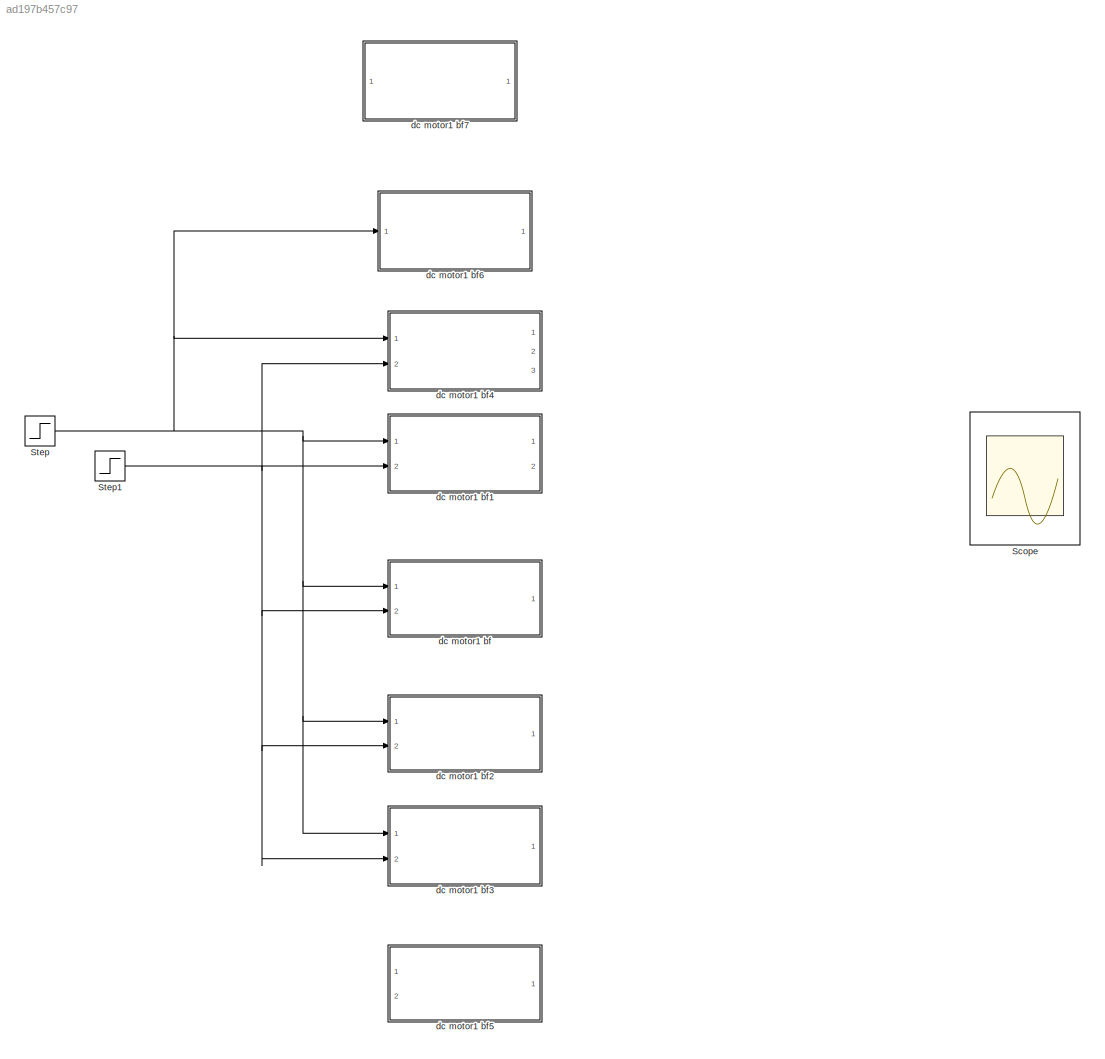
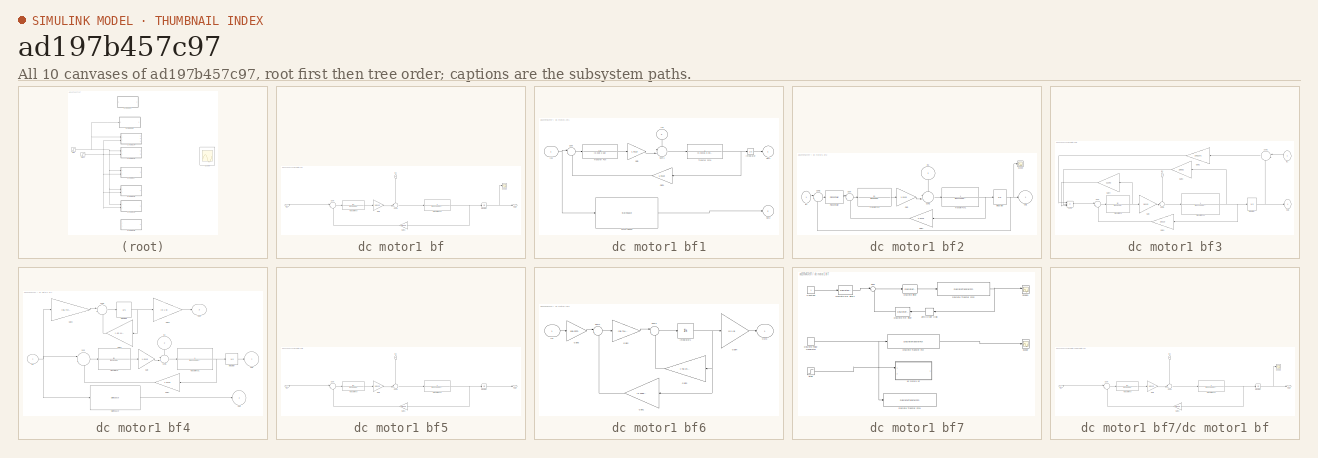
[diagram: thumbnail index - all 10 canvases of the model, root first then tree order]
MODEL slx_ad197b457c97
KIND model
CONFIG AbsTol = auto
CONFIG EnableMultiTasking = off
CONFIG FixedStep = 0.0001
CONFIG MaxStep = auto
CONFIG MinStep = auto
CONFIG RelTol = 1e-3
CONFIG SampleTimeConstraint = Unconstrained
CONFIG SolverName = FixedStepAuto
CONFIG StartTime = 0.0
CONFIG StopTime = 2
BLOCK [Scope] Scope
  Floating = off
  NumInputPorts = 2
  Ports = [2]
  ScopeSpecificationString = Simulink.scopes.TimeScopeBlockCfg('CurrentConfiguration', extmgr.ConfigurationSet(extmgr.Configuration('Core','General UI',true),extmgr.Configuration('Core','Source UI',true),extmgr.Configuration('Sources','WiredSimulink',true,'DataLoggingLimitDataPoints',true,'DataLoggingMaxPoints','50000000'),extmgr.Configuration('Visuals','Time Domain',true,'SerializedDisplays',{struct('MinYLimReal','-2503.0283...<+1631ch>
BLOCK [Step] Step
  After = 100
  SampleTime = 0
  Time = 0
BLOCK [Step] Step1
  After = 0
  SampleTime = 0
  Time = 0
BLOCK [SubSystem] dc motor1 bf
  Ports = [2, 1]
  RequestExecContextInheritance = off
BLOCK [Gain] dc motor1 bf/Gain
  Gain = 1.0113
BLOCK [Gain] dc motor1 bf/Gain1
  Gain = 1.0113
BLOCK [Inport] dc motor1 bf/In1
BLOCK [Inport] dc motor1 bf/In2
  NameLocation = left
  Port = 2
BLOCK [Integrator] dc motor1 bf/Integrator
  InitialCondition = 3
  Ports = [1, 1]
BLOCK [Outport] dc motor1 bf/Out1
BLOCK [Scope] dc motor1 bf/Scope
  Floating = off
  NumInputPorts = 1
  Ports = [1]
  ScopeSpecificationString = Simulink.scopes.TimeScopeBlockCfg('CurrentConfiguration', extmgr.ConfigurationSet(extmgr.Configuration('Core','General UI',true),extmgr.Configuration('Core','Source UI',true),extmgr.Configuration('Sources','WiredSimulink',true,'DataLoggingVariableName','ScopeData7'),extmgr.Configuration('Visuals','Time Domain',true,'SerializedDisplays',{struct('MinYLimReal','-20.8564','MaxYLimReal','217.70757','YL...<+1377ch>
BLOCK [Sum] dc motor1 bf/Sum
  Inputs = |+-
  Ports = [2, 1]
BLOCK [Sum] dc motor1 bf/Sum1
  Inputs = -+|
  Ports = [2, 1]
BLOCK [TransferFcn] dc motor1 bf/Transfer Fcn
  Denominator = [0.028 2.58]
BLOCK [TransferFcn] dc motor1 bf/Transfer Fcn1
  Denominator = [0.02215 0.002953]
  Numerator = 1
BLOCK [SubSystem] dc motor1 bf1
  Ports = [2, 2]
  RequestExecContextInheritance = off
BLOCK [Gain] dc motor1 bf1/Gain
  Gain = 1.0113
BLOCK [Gain] dc motor1 bf1/Gain1
  Gain = 1.0113
BLOCK [Inport] dc motor1 bf1/In1
BLOCK [Inport] dc motor1 bf1/In2
  NameLocation = left
  Port = 2
BLOCK [Integrator] dc motor1 bf1/Integrator
  Ports = [1, 1]
BLOCK [Outport] dc motor1 bf1/Out1
BLOCK [Outport] dc motor1 bf1/Out2
  Port = 2
BLOCK [StateSpace] dc motor1 bf1/State-Space
  A = [-92.1429 0 -36.1179\n ;0 0 1.0000;\n45.6569   0   -0.1333]
  B = [35.7143;0;0]
  C = [0 1 0]
  D = 0
  InitialCondition = 0
  Ports = [1, 1]
BLOCK [Sum] dc motor1 bf1/Sum
  Inputs = |+-
  Ports = [2, 1]
BLOCK [Sum] dc motor1 bf1/Sum1
  Inputs = -+|
  Ports = [2, 1]
BLOCK [TransferFcn] dc motor1 bf1/Transfer Fcn
  Denominator = [0.028 2.58]
BLOCK [TransferFcn] dc motor1 bf1/Transfer Fcn1
  Denominator = [0.02215 0.002953]
  Numerator = 1
BLOCK [SubSystem] dc motor1 bf2
  Ports = [2, 1]
  RequestExecContextInheritance = off
BLOCK [Gain] dc motor1 bf2/Gain
  Gain = 1.0113
BLOCK [Gain] dc motor1 bf2/Gain1
  Gain = 1.0113
BLOCK [Inport] dc motor1 bf2/In1
BLOCK [Inport] dc motor1 bf2/In2
  NameLocation = left
  Port = 2
BLOCK [Integrator] dc motor1 bf2/Integrator
  InitialCondition = 3
  Ports = [1, 1]
BLOCK [Outport] dc motor1 bf2/Out1
BLOCK [Reference] dc motor1 bf2/PID Controller  REF=pid_lib/PID Controller
  Ports = [1, 1]
  SourceBlock = pid_lib/PID Controller
  SourceProductBaseCode = SL
  SourceType = PID 1dof
BLOCK [Scope] dc motor1 bf2/Scope
  Floating = off
  NumInputPorts = 1
  Ports = [1]
  ScopeSpecificationString = Simulink.scopes.TimeScopeBlockCfg('CurrentConfiguration', extmgr.ConfigurationSet(extmgr.Configuration('Core','General UI',true),extmgr.Configuration('Core','Source UI',true),extmgr.Configuration('Sources','WiredSimulink',true,'DataLoggingVariableName','ScopeData8'),extmgr.Configuration('Visuals','Time Domain',true,'SerializedDisplays',{struct('MinYLimReal','-7.51695','MaxYLimReal','97.65251','YLa...<+1373ch>
BLOCK [Sum] dc motor1 bf2/Sum
  Inputs = |+-
  Ports = [2, 1]
BLOCK [Sum] dc motor1 bf2/Sum1
  Inputs = -+|
  Ports = [2, 1]
BLOCK [Sum] dc motor1 bf2/Sum2
  Inputs = |+-
  Ports = [2, 1]
BLOCK [TransferFcn] dc motor1 bf2/Transfer Fcn
  Denominator = [0.028 2.58]
BLOCK [TransferFcn] dc motor1 bf2/Transfer Fcn1
  Denominator = [0.02215 0.002953]
  Numerator = 1
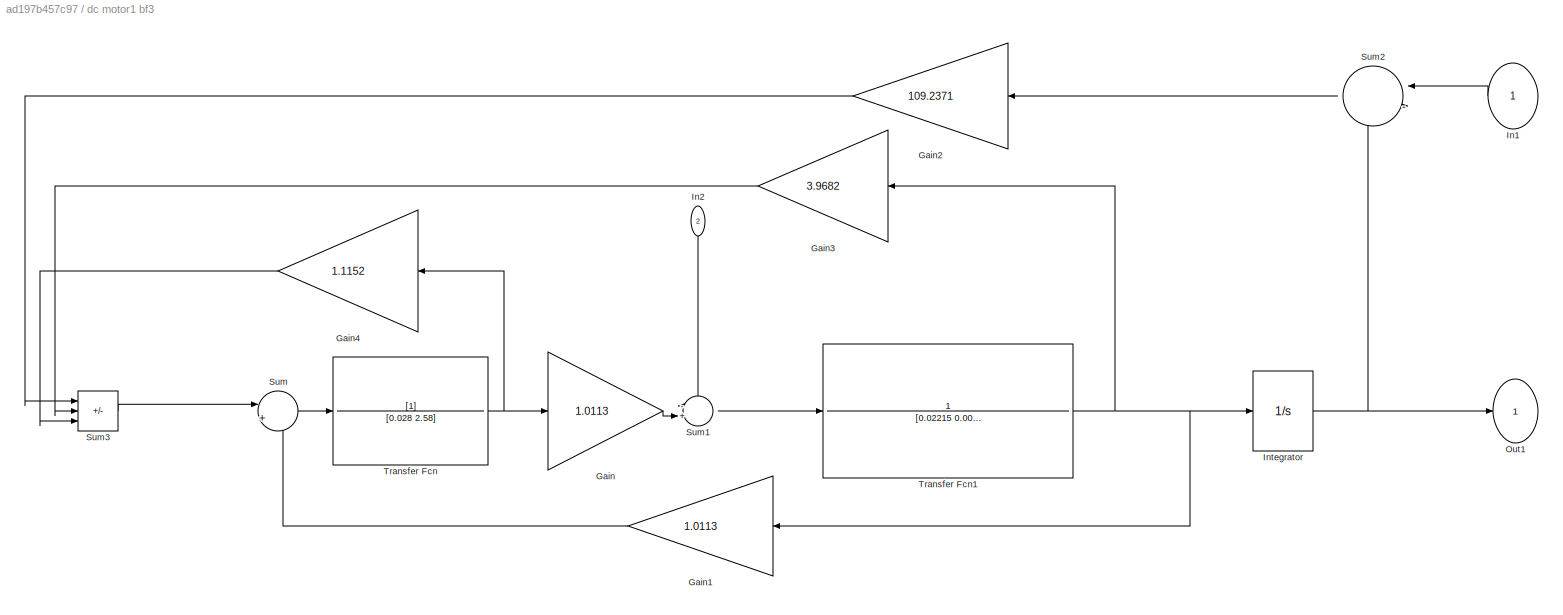
BLOCK [SubSystem] dc motor1 bf3
  Ports = [2, 1]
  RequestExecContextInheritance = off
BLOCK [Gain] dc motor1 bf3/Gain
  Gain = 1.0113
BLOCK [Gain] dc motor1 bf3/Gain1
  Gain = 1.0113
BLOCK [Gain] dc motor1 bf3/Gain2
  Gain = 109.2371
BLOCK [Gain] dc motor1 bf3/Gain3
  Gain = 3.9682
BLOCK [Gain] dc motor1 bf3/Gain4
  Gain = 1.1152
BLOCK [Inport] dc motor1 bf3/In1
  NameLocation = top
BLOCK [Inport] dc motor1 bf3/In2
  NameLocation = left
  Port = 2
BLOCK [Integrator] dc motor1 bf3/Integrator
  InitialCondition = 3
  Ports = [1, 1]
BLOCK [Outport] dc motor1 bf3/Out1
BLOCK [Sum] dc motor1 bf3/Sum
  Inputs = |+-
  Ports = [2, 1]
BLOCK [Sum] dc motor1 bf3/Sum1
  Inputs = -+|
  Ports = [2, 1]
BLOCK [Sum] dc motor1 bf3/Sum2
  Inputs = |-+
  NameLocation = top
  Ports = [2, 1]
BLOCK [Sum] dc motor1 bf3/Sum3
  IconShape = rectangular
  Inputs = |---
  Ports = [3, 1]
BLOCK [TransferFcn] dc motor1 bf3/Transfer Fcn
  Denominator = [0.028 2.58]
BLOCK [TransferFcn] dc motor1 bf3/Transfer Fcn1
  Denominator = [0.02215 0.002953]
  Numerator = 1
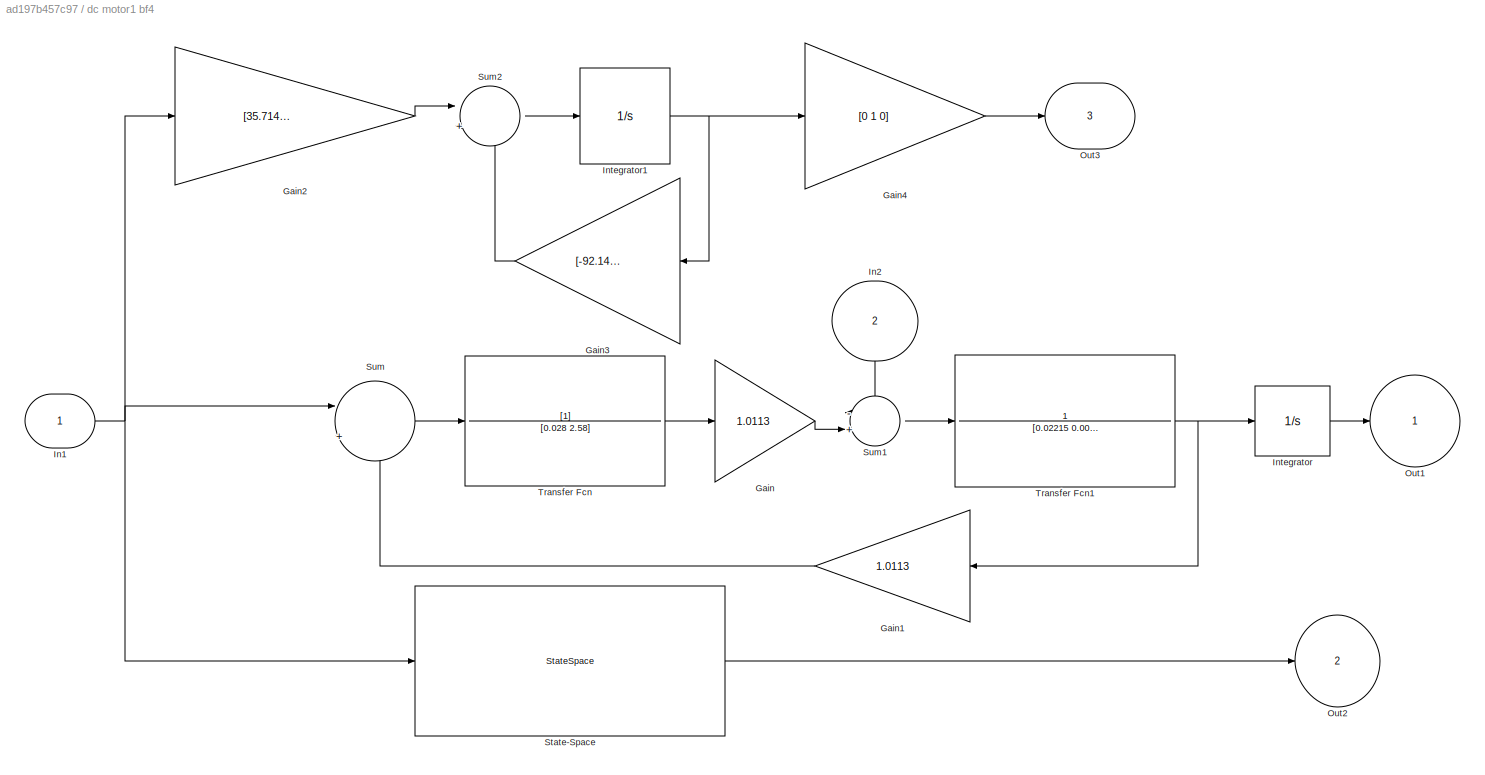
BLOCK [SubSystem] dc motor1 bf4
  Ports = [2, 3]
  RequestExecContextInheritance = off
BLOCK [Gain] dc motor1 bf4/Gain
  Gain = 1.0113
BLOCK [Gain] dc motor1 bf4/Gain1
  Gain = 1.0113
BLOCK [Gain] dc motor1 bf4/Gain2
  Gain = [35.7143;0;0]
  Multiplication = Matrix(K*u)
BLOCK [Gain] dc motor1 bf4/Gain3
  Gain = [-92.1429 0 -36.1179\n ;0 0 1.0000;\n45.6569   0   -0.1333]
  Multiplication = Matrix(K*u)
BLOCK [Gain] dc motor1 bf4/Gain4
  Gain = [0 1 0]
  Multiplication = Matrix(K*u)
BLOCK [Inport] dc motor1 bf4/In1
BLOCK [Inport] dc motor1 bf4/In2
  NameLocation = left
  Port = 2
BLOCK [Integrator] dc motor1 bf4/Integrator
  Ports = [1, 1]
BLOCK [Integrator] dc motor1 bf4/Integrator1
  Ports = [1, 1]
BLOCK [Outport] dc motor1 bf4/Out1
BLOCK [Outport] dc motor1 bf4/Out2
  Port = 2
BLOCK [Outport] dc motor1 bf4/Out3
  Port = 3
BLOCK [StateSpace] dc motor1 bf4/State-Space
  A = [-92.1429 0 -36.1179\n ;0 0 1.0000;\n45.6569   0   -0.1333]
  B = [35.7143;0;0]
  C = [0 1 0]
  D = 0
  InitialCondition = 0
  Ports = [1, 1]
BLOCK [Sum] dc motor1 bf4/Sum
  Inputs = |+-
  Ports = [2, 1]
BLOCK [Sum] dc motor1 bf4/Sum1
  Inputs = -+|
  Ports = [2, 1]
BLOCK [Sum] dc motor1 bf4/Sum2
  Inputs = |++
  Ports = [2, 1]
BLOCK [TransferFcn] dc motor1 bf4/Transfer Fcn
  Denominator = [0.028 2.58]
BLOCK [TransferFcn] dc motor1 bf4/Transfer Fcn1
  Denominator = [0.02215 0.002953]
  Numerator = 1
BLOCK [SubSystem] dc motor1 bf5
  Ports = [2, 1]
  RequestExecContextInheritance = off
BLOCK [Gain] dc motor1 bf5/Gain
  Gain = 1.0113
BLOCK [Gain] dc motor1 bf5/Gain1
  Gain = 1.0113
BLOCK [Inport] dc motor1 bf5/In1
BLOCK [Inport] dc motor1 bf5/In2
  NameLocation = left
  Port = 2
BLOCK [Integrator] dc motor1 bf5/Integrator
  InitialCondition = 3
  Ports = [1, 1]
BLOCK [Outport] dc motor1 bf5/Out1
BLOCK [Sum] dc motor1 bf5/Sum
  Inputs = |+-
  Ports = [2, 1]
BLOCK [Sum] dc motor1 bf5/Sum1
  Inputs = -+|
  Ports = [2, 1]
BLOCK [TransferFcn] dc motor1 bf5/Transfer Fcn
  Denominator = [0.028 2.58]
BLOCK [TransferFcn] dc motor1 bf5/Transfer Fcn1
  Denominator = [0.02215 0.002953]
  Numerator = 1
BLOCK [SubSystem] dc motor1 bf6
  Ports = [1, 1]
  RequestExecContextInheritance = off
BLOCK [Gain] dc motor1 bf6/Gain1
  Gain = [1.1152  109.2371    3.9682]
  Multiplication = Matrix(K*u)
BLOCK [Gain] dc motor1 bf6/Gain2
  Gain = [35.7143;0;0]
  Multiplication = Matrix(K*u)
BLOCK [Gain] dc motor1 bf6/Gain3
  Gain = [-92.1429 0 -36.1179\n ;0 0 1.0000;\n45.6569   0   -0.1333]
  Multiplication = Matrix(K*u)
BLOCK [Gain] dc motor1 bf6/Gain4
  Gain = [0 1 0]
  Multiplication = Matrix(K*u)
BLOCK [Gain] dc motor1 bf6/Gain5
  Gain = 109.2371
BLOCK [Inport] dc motor1 bf6/In1
BLOCK [Integrator] dc motor1 bf6/Integrator1
  Ports = [1, 1]
BLOCK [Outport] dc motor1 bf6/Out3
BLOCK [Sum] dc motor1 bf6/Sum1
  Inputs = |+-
  Ports = [2, 1]
BLOCK [Sum] dc motor1 bf6/Sum2
  Inputs = |++
  Ports = [2, 1]
BLOCK [SubSystem] dc motor1 bf7
  Ports = []
  RequestExecContextInheritance = off
BLOCK [Constant] dc motor1 bf7/Constant
BLOCK [DiscreteFir] dc motor1 bf7/Discrete FIR Filter
  InputPortMap = u0
  NameLocation = top
  OutputPortMap = o0
  Ports = [1, 1]
BLOCK [DiscreteFir] dc motor1 bf7/Discrete FIR Filter1
  InputPortMap = u0
  OutputPortMap = o0
  Ports = [1, 1]
BLOCK [DiscreteFilter] dc motor1 bf7/Discrete Filter
  InputPortMap = u0
  Ports = [1, 1]
BLOCK [DiscretePulseGenerator] dc motor1 bf7/Discrete Pulse Generator
  Period = 0.01
  Ports = [0, 1]
  PulseType = Time based
  PulseWidth = 5
BLOCK [DiscreteTransferFcn] dc motor1 bf7/Discrete Transfer Fcn
  Denominator = [1 -2.29 1.687 -0.397]
  InputPortMap = u0
  Numerator = [1 -1.93 0.713]
  Ports = [1, 1]
BLOCK [DiscreteTransferFcn] dc motor1 bf7/Discrete Transfer Fcn1
  Denominator = [1 -2.291 1.688  -0.3975]
  InputPortMap = u0
  Numerator = [0.02174 0.06959 0.000001371]
  Ports = [1, 1]
BLOCK [DiscreteTransferFcn] dc motor1 bf7/Discrete Transfer Fcn2
  Denominator = [1 -2.29 1.687 -0.397]
  InputPortMap = u0
  Numerator = [1.3 -1.93 0.713]
  Ports = [1, 1]
BLOCK [Scope] dc motor1 bf7/Scope
  Floating = off
  NumInputPorts = 1
  Ports = [1]
  ScopeSpecificationString = Simulink.scopes.TimeScopeBlockCfg('CurrentConfiguration', extmgr.ConfigurationSet(extmgr.Configuration('Core','General UI',true),extmgr.Configuration('Core','Source UI',true),extmgr.Configuration('Sources','WiredSimulink',true,'DataLoggingVariableName','ScopeData1'),extmgr.Configuration('Visuals','Time Domain',true,'SerializedDisplays',{struct('MinYLimReal','33.81183','MaxYLimReal','51.50264','YLa...<+1482ch>
BLOCK [Scope] dc motor1 bf7/Scope1
  Floating = off
  NumInputPorts = 2
  Ports = [2]
  ScopeSpecificationString = Simulink.scopes.TimeScopeBlockCfg('CurrentConfiguration', extmgr.ConfigurationSet(extmgr.Configuration('Core','General UI',true),extmgr.Configuration('Core','Source UI',true),extmgr.Configuration('Sources','WiredSimulink',true,'DataLoggingVariableName','ScopeData2'),extmgr.Configuration('Visuals','Time Domain',true,'SerializedDisplays',{struct('MinYLimReal','-77.91854','MaxYLimReal','128.21012','Y...<+1476ch>
BLOCK [Step] dc motor1 bf7/Step
  SampleTime = 0
  Time = 0
BLOCK [Sum] dc motor1 bf7/Sum
  Inputs = |+-
  Ports = [2, 1]
BLOCK [ZeroOrderHold] dc motor1 bf7/Zero-Order Hold
  NameLocation = top
  SampleTime = -1
BLOCK [SubSystem] dc motor1 bf7/dc motor1 bf
  Ports = [2, 1]
  RequestExecContextInheritance = off
BLOCK [Gain] dc motor1 bf7/dc motor1 bf/Gain
  Gain = 1.0113
BLOCK [Gain] dc motor1 bf7/dc motor1 bf/Gain1
  Gain = 1.0113
BLOCK [Inport] dc motor1 bf7/dc motor1 bf/In1
BLOCK [Inport] dc motor1 bf7/dc motor1 bf/In2
  NameLocation = left
  Port = 2
BLOCK [Integrator] dc motor1 bf7/dc motor1 bf/Integrator
  Ports = [1, 1]
BLOCK [Outport] dc motor1 bf7/dc motor1 bf/Out1
BLOCK [Scope] dc motor1 bf7/dc motor1 bf/Scope
  Floating = off
  NumInputPorts = 1
  Ports = [1]
  ScopeSpecificationString = Simulink.scopes.TimeScopeBlockCfg('CurrentConfiguration', extmgr.ConfigurationSet(extmgr.Configuration('Core','General UI',true),extmgr.Configuration('Core','Source UI',true),extmgr.Configuration('Sources','WiredSimulink',true,'DataLoggingVariableName','ScopeData7'),extmgr.Configuration('Visuals','Time Domain',true,'SerializedDisplays',{struct('MinYLimReal','-0.23856','MaxYLimReal','2.14708','YLab...<+1369ch>
BLOCK [Sum] dc motor1 bf7/dc motor1 bf/Sum
  Inputs = |+-
  Ports = [2, 1]
BLOCK [Sum] dc motor1 bf7/dc motor1 bf/Sum1
  Inputs = -+|
  Ports = [2, 1]
BLOCK [TransferFcn] dc motor1 bf7/dc motor1 bf/Transfer Fcn
  Denominator = [0.028 2.58]
BLOCK [TransferFcn] dc motor1 bf7/dc motor1 bf/Transfer Fcn1
  Denominator = [0.02215 0.002953]
  Numerator = 1
NET Step1:1 -> dc motor1 bf1:2, dc motor1 bf2:2, dc motor1 bf3:2, dc motor1 bf4:2, dc motor1 bf:2
NET Step:1 -> dc motor1 bf1:1, dc motor1 bf2:1, dc motor1 bf3:1, dc motor1 bf4:1, dc motor1 bf6:1, dc motor1 bf:1
LINE dc motor1 bf/Gain1:1 -> dc motor1 bf/Sum:2
LINE dc motor1 bf/Gain:1 -> dc motor1 bf/Sum1:2
LINE dc motor1 bf/In1:1 -> dc motor1 bf/Sum:1
LINE dc motor1 bf/In2:1 -> dc motor1 bf/Sum1:1
NET dc motor1 bf/Integrator:1 -> dc motor1 bf/Out1:1, dc motor1 bf/Scope:1
LINE dc motor1 bf/Sum1:1 -> dc motor1 bf/Transfer Fcn1:1
LINE dc motor1 bf/Sum:1 -> dc motor1 bf/Transfer Fcn:1
NET dc motor1 bf/Transfer Fcn1:1 -> dc motor1 bf/Gain1:1, dc motor1 bf/Integrator:1
LINE dc motor1 bf/Transfer Fcn:1 -> dc motor1 bf/Gain:1
LINE dc motor1 bf1/Gain1:1 -> dc motor1 bf1/Sum:2
LINE dc motor1 bf1/Gain:1 -> dc motor1 bf1/Sum1:2
NET dc motor1 bf1/In1:1 -> dc motor1 bf1/State-Space:1, dc motor1 bf1/Sum:1
LINE dc motor1 bf1/In2:1 -> dc motor1 bf1/Sum1:1
LINE dc motor1 bf1/Integrator:1 -> dc motor1 bf1/Out1:1
LINE dc motor1 bf1/State-Space:1 -> dc motor1 bf1/Out2:1
LINE dc motor1 bf1/Sum1:1 -> dc motor1 bf1/Transfer Fcn1:1
LINE dc motor1 bf1/Sum:1 -> dc motor1 bf1/Transfer Fcn:1
NET dc motor1 bf1/Transfer Fcn1:1 -> dc motor1 bf1/Gain1:1, dc motor1 bf1/Integrator:1
LINE dc motor1 bf1/Transfer Fcn:1 -> dc motor1 bf1/Gain:1
LINE dc motor1 bf2/Gain1:1 -> dc motor1 bf2/Sum:2
LINE dc motor1 bf2/Gain:1 -> dc motor1 bf2/Sum1:2
LINE dc motor1 bf2/In1:1 -> dc motor1 bf2/Sum2:1
LINE dc motor1 bf2/In2:1 -> dc motor1 bf2/Sum1:1
NET dc motor1 bf2/Integrator:1 -> dc motor1 bf2/Out1:1, dc motor1 bf2/Scope:1, dc motor1 bf2/Sum2:2
LINE dc motor1 bf2/PID Controller:1 -> dc motor1 bf2/Sum:1
LINE dc motor1 bf2/Sum1:1 -> dc motor1 bf2/Transfer Fcn1:1
LINE dc motor1 bf2/Sum2:1 -> dc motor1 bf2/PID Controller:1
LINE dc motor1 bf2/Sum:1 -> dc motor1 bf2/Transfer Fcn:1
NET dc motor1 bf2/Transfer Fcn1:1 -> dc motor1 bf2/Gain1:1, dc motor1 bf2/Integrator:1
LINE dc motor1 bf2/Transfer Fcn:1 -> dc motor1 bf2/Gain:1
LINE dc motor1 bf3/Gain1:1 -> dc motor1 bf3/Sum:2
LINE dc motor1 bf3/Gain2:1 -> dc motor1 bf3/Sum3:1
LINE dc motor1 bf3/Gain3:1 -> dc motor1 bf3/Sum3:2
LINE dc motor1 bf3/Gain4:1 -> dc motor1 bf3/Sum3:3
LINE dc motor1 bf3/Gain:1 -> dc motor1 bf3/Sum1:2
LINE dc motor1 bf3/In1:1 -> dc motor1 bf3/Sum2:1
LINE dc motor1 bf3/In2:1 -> dc motor1 bf3/Sum1:1
NET dc motor1 bf3/Integrator:1 -> dc motor1 bf3/Out1:1, dc motor1 bf3/Sum2:2
LINE dc motor1 bf3/Sum1:1 -> dc motor1 bf3/Transfer Fcn1:1
LINE dc motor1 bf3/Sum2:1 -> dc motor1 bf3/Gain2:1
LINE dc motor1 bf3/Sum3:1 -> dc motor1 bf3/Sum:1
LINE dc motor1 bf3/Sum:1 -> dc motor1 bf3/Transfer Fcn:1
NET dc motor1 bf3/Transfer Fcn1:1 -> dc motor1 bf3/Gain1:1, dc motor1 bf3/Gain3:1, dc motor1 bf3/Integrator:1
NET dc motor1 bf3/Transfer Fcn:1 -> dc motor1 bf3/Gain4:1, dc motor1 bf3/Gain:1
LINE dc motor1 bf4/Gain1:1 -> dc motor1 bf4/Sum:2
LINE dc motor1 bf4/Gain2:1 -> dc motor1 bf4/Sum2:1
LINE dc motor1 bf4/Gain3:1 -> dc motor1 bf4/Sum2:2
LINE dc motor1 bf4/Gain4:1 -> dc motor1 bf4/Out3:1
LINE dc motor1 bf4/Gain:1 -> dc motor1 bf4/Sum1:2
NET dc motor1 bf4/In1:1 -> dc motor1 bf4/Gain2:1, dc motor1 bf4/State-Space:1, dc motor1 bf4/Sum:1
LINE dc motor1 bf4/In2:1 -> dc motor1 bf4/Sum1:1
NET dc motor1 bf4/Integrator1:1 -> dc motor1 bf4/Gain3:1, dc motor1 bf4/Gain4:1
LINE dc motor1 bf4/Integrator:1 -> dc motor1 bf4/Out1:1
LINE dc motor1 bf4/State-Space:1 -> dc motor1 bf4/Out2:1
LINE dc motor1 bf4/Sum1:1 -> dc motor1 bf4/Transfer Fcn1:1
LINE dc motor1 bf4/Sum2:1 -> dc motor1 bf4/Integrator1:1
LINE dc motor1 bf4/Sum:1 -> dc motor1 bf4/Transfer Fcn:1
NET dc motor1 bf4/Transfer Fcn1:1 -> dc motor1 bf4/Gain1:1, dc motor1 bf4/Integrator:1
LINE dc motor1 bf4/Transfer Fcn:1 -> dc motor1 bf4/Gain:1
LINE dc motor1 bf5/Gain1:1 -> dc motor1 bf5/Sum:2
LINE dc motor1 bf5/Gain:1 -> dc motor1 bf5/Sum1:2
LINE dc motor1 bf5/In1:1 -> dc motor1 bf5/Sum:1
LINE dc motor1 bf5/In2:1 -> dc motor1 bf5/Sum1:1
LINE dc motor1 bf5/Integrator:1 -> dc motor1 bf5/Out1:1
LINE dc motor1 bf5/Sum1:1 -> dc motor1 bf5/Transfer Fcn1:1
LINE dc motor1 bf5/Sum:1 -> dc motor1 bf5/Transfer Fcn:1
NET dc motor1 bf5/Transfer Fcn1:1 -> dc motor1 bf5/Gain1:1, dc motor1 bf5/Integrator:1
LINE dc motor1 bf5/Transfer Fcn:1 -> dc motor1 bf5/Gain:1
LINE dc motor1 bf6/Gain1:1 -> dc motor1 bf6/Sum1:2
LINE dc motor1 bf6/Gain2:1 -> dc motor1 bf6/Sum2:1
LINE dc motor1 bf6/Gain3:1 -> dc motor1 bf6/Sum2:2
LINE dc motor1 bf6/Gain4:1 -> dc motor1 bf6/Out3:1
LINE dc motor1 bf6/Gain5:1 -> dc motor1 bf6/Sum1:1
LINE dc motor1 bf6/In1:1 -> dc motor1 bf6/Gain5:1
NET dc motor1 bf6/Integrator1:1 -> dc motor1 bf6/Gain1:1, dc motor1 bf6/Gain3:1, dc motor1 bf6/Gain4:1
LINE dc motor1 bf6/Sum1:1 -> dc motor1 bf6/Gain2:1
LINE dc motor1 bf6/Sum2:1 -> dc motor1 bf6/Integrator1:1
LINE dc motor1 bf7/Constant:1 -> dc motor1 bf7/Discrete FIR Filter1:1
LINE dc motor1 bf7/Discrete FIR Filter1:1 -> dc motor1 bf7/Sum:1
LINE dc motor1 bf7/Discrete FIR Filter:1 -> dc motor1 bf7/Sum:2
LINE dc motor1 bf7/Discrete Filter:1 -> dc motor1 bf7/Discrete Transfer Fcn2:1
NET dc motor1 bf7/Discrete Pulse Generator:1 -> dc motor1 bf7/Discrete Transfer Fcn1:1, dc motor1 bf7/Discrete Transfer Fcn:1
NET dc motor1 bf7/Discrete Transfer Fcn2:1 -> dc motor1 bf7/Scope1:1, dc motor1 bf7/Zero-Order Hold:1
LINE dc motor1 bf7/Discrete Transfer Fcn:1 -> dc motor1 bf7/Scope:1
LINE dc motor1 bf7/Step:1 -> dc motor1 bf7/dc motor1 bf:1
LINE dc motor1 bf7/Sum:1 -> dc motor1 bf7/Discrete Filter:1
LINE dc motor1 bf7/Zero-Order Hold:1 -> dc motor1 bf7/Discrete FIR Filter:1
LINE dc motor1 bf7/dc motor1 bf/Gain1:1 -> dc motor1 bf7/dc motor1 bf/Sum:2
LINE dc motor1 bf7/dc motor1 bf/Gain:1 -> dc motor1 bf7/dc motor1 bf/Sum1:2
LINE dc motor1 bf7/dc motor1 bf/In1:1 -> dc motor1 bf7/dc motor1 bf/Sum:1
LINE dc motor1 bf7/dc motor1 bf/In2:1 -> dc motor1 bf7/dc motor1 bf/Sum1:1
NET dc motor1 bf7/dc motor1 bf/Integrator:1 -> dc motor1 bf7/dc motor1 bf/Out1:1, dc motor1 bf7/dc motor1 bf/Scope:1
LINE dc motor1 bf7/dc motor1 bf/Sum1:1 -> dc motor1 bf7/dc motor1 bf/Transfer Fcn1:1
LINE dc motor1 bf7/dc motor1 bf/Sum:1 -> dc motor1 bf7/dc motor1 bf/Transfer Fcn:1
NET dc motor1 bf7/dc motor1 bf/Transfer Fcn1:1 -> dc motor1 bf7/dc motor1 bf/Gain1:1, dc motor1 bf7/dc motor1 bf/Integrator:1
LINE dc motor1 bf7/dc motor1 bf/Transfer Fcn:1 -> dc motor1 bf7/dc motor1 bf/Gain:1
note: NET lines group one-source signal fan-out (src -> all destinations, sorted); 1:1 wires keep LINE
